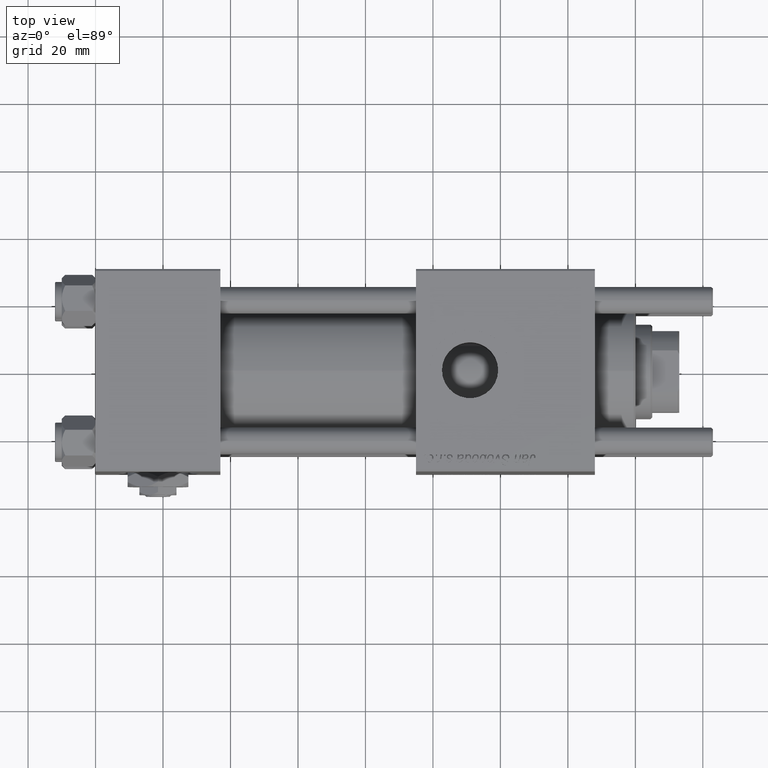
[diagram: clean part render]
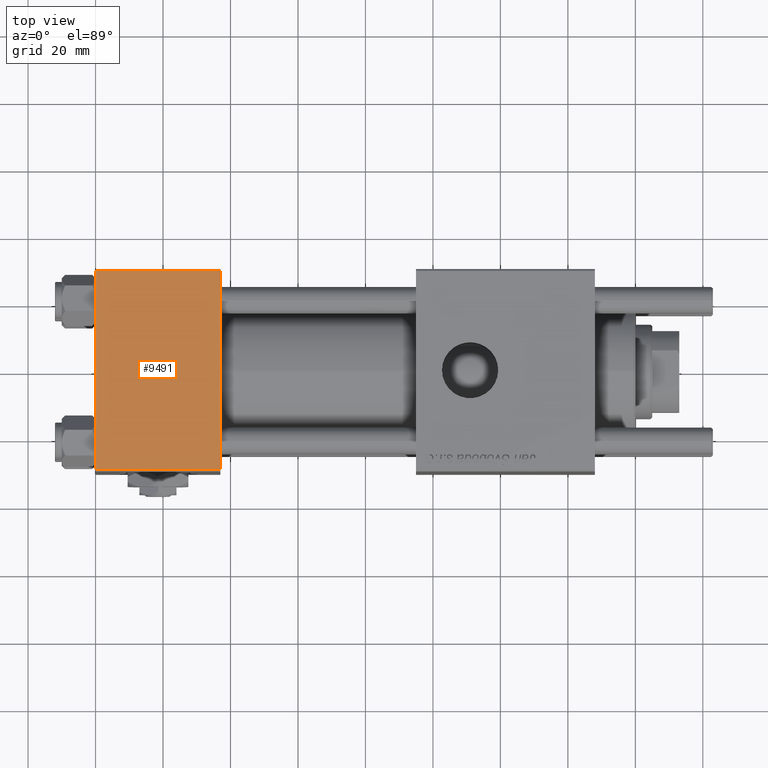
[diagram: same view with one face highlighted and labeled with its STEP entity id]
A machine part, top view. The second image highlights one B-rep face of the part: STEP entity #9491.
In plain terms, the highlighted planar face has unit normal (0, 0, -1).
Its self-contained STEP definition (entity closure, byte-faithful):
#851 = DIRECTION ( 'NONE',  ( 0.000000000000000000, -1.000000000000000000, -1.156482317317871725E-16 ) ) ;
#2171 = EDGE_LOOP ( 'NONE', ( #48240, #45361, #12078, #50983 ) ) ;
#5272 = VERTEX_POINT ( 'NONE', #25522 ) ;
#5629 = CARTESIAN_POINT ( 'NONE',  ( 37.00000000000000000, 29.49999999999999289, 30.00000000000000000 ) ) ;
#6212 = CARTESIAN_POINT ( 'NONE',  ( 0.000000000000000000, 29.49999999999999289, 30.00000000000000000 ) ) ;
#6831 = VECTOR ( 'NONE', #851, 1000.000000000000000 ) ;
#9491 = ADVANCED_FACE ( 'NONE', ( #24990 ), #48479, .F. ) ;
#10067 = CARTESIAN_POINT ( 'NONE',  ( 0.000000000000000000, 29.99999999999999289, 30.00000000000000000 ) ) ;
#11419 = CARTESIAN_POINT ( 'NONE',  ( 37.00000000000000000, -29.49999999999998579, 29.99999999999999289 ) ) ;
#12078 = ORIENTED_EDGE ( 'NONE', *, *, #25236, .F. ) ;
#14190 = LINE ( 'NONE', #36825, #33060 ) ;
#14210 = DIRECTION ( 'NONE',  ( -1.000000000000000000, 0.000000000000000000, 0.000000000000000000 ) ) ;
#14486 = VERTEX_POINT ( 'NONE', #5629 ) ;
#23162 = LINE ( 'NONE', #55000, #25866 ) ;
#24331 = EDGE_CURVE ( 'NONE', #5272, #34689, #45930, .T. ) ;
#24990 = FACE_OUTER_BOUND ( 'NONE', #2171, .T. ) ;
#25236 = EDGE_CURVE ( 'NONE', #14486, #34689, #14190, .T. ) ;
#25522 = CARTESIAN_POINT ( 'NONE',  ( 0.000000000000000000, -29.49999999999998579, 29.99999999999999289 ) ) ;
#25866 = VECTOR ( 'NONE', #14210, 1000.000000000000000 ) ;
#27210 = CARTESIAN_POINT ( 'NONE',  ( 37.00000000000000000, -29.50000000000000000, 29.99999999999999289 ) ) ;
#28229 = LINE ( 'NONE', #10067, #6831 ) ;
#32131 = VECTOR ( 'NONE', #37006, 1000.000000000000000 ) ;
#33060 = VECTOR ( 'NONE', #45744, 1000.000000000000000 ) ;
#34163 = VERTEX_POINT ( 'NONE', #6212 ) ;
#34689 = VERTEX_POINT ( 'NONE', #11419 ) ;
#36825 = CARTESIAN_POINT ( 'NONE',  ( 37.00000000000000000, 29.99999999999999289, 30.00000000000000000 ) ) ;
#37006 = DIRECTION ( 'NONE',  ( 1.000000000000000000, 0.000000000000000000, 0.000000000000000000 ) ) ;
#41366 = AXIS2_PLACEMENT_3D ( 'NONE', #52362, #43417, #48183 ) ;
#43417 = DIRECTION ( 'NONE',  ( 0.000000000000000000, 1.156482317317871725E-16, -1.000000000000000000 ) ) ;
#45361 = ORIENTED_EDGE ( 'NONE', *, *, #24331, .T. ) ;
#45744 = DIRECTION ( 'NONE',  ( 0.000000000000000000, -1.000000000000000000, -1.156482317317871725E-16 ) ) ;
#45930 = LINE ( 'NONE', #27210, #32131 ) ;
#48183 = DIRECTION ( 'NONE',  ( 0.000000000000000000, 1.000000000000000000, 1.156482317317871725E-16 ) ) ;
#48240 = ORIENTED_EDGE ( 'NONE', *, *, #52968, .T. ) ;
#48479 = PLANE ( 'NONE',  #41366 ) ;
#50983 = ORIENTED_EDGE ( 'NONE', *, *, #57772, .T. ) ;
#52362 = CARTESIAN_POINT ( 'NONE',  ( 37.00000000000000000, 29.99999999999999289, 30.00000000000000000 ) ) ;
#52968 = EDGE_CURVE ( 'NONE', #34163, #5272, #28229, .T. ) ;
#55000 = CARTESIAN_POINT ( 'NONE',  ( 0.000000000000000000, 29.49999999999999289, 30.00000000000000000 ) ) ;
#57772 = EDGE_CURVE ( 'NONE', #14486, #34163, #23162, .T. ) ;